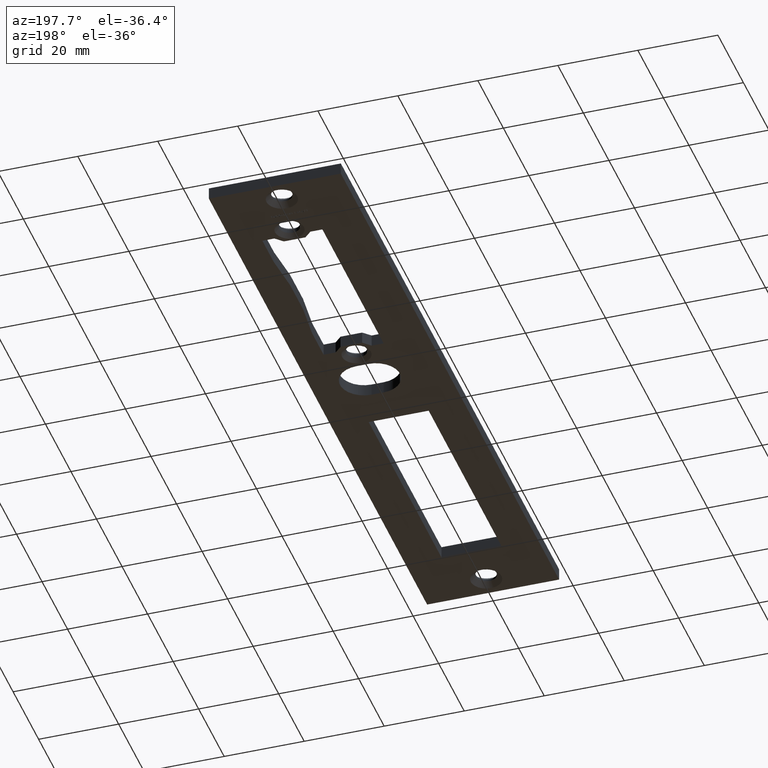
[diagram: clean part render]
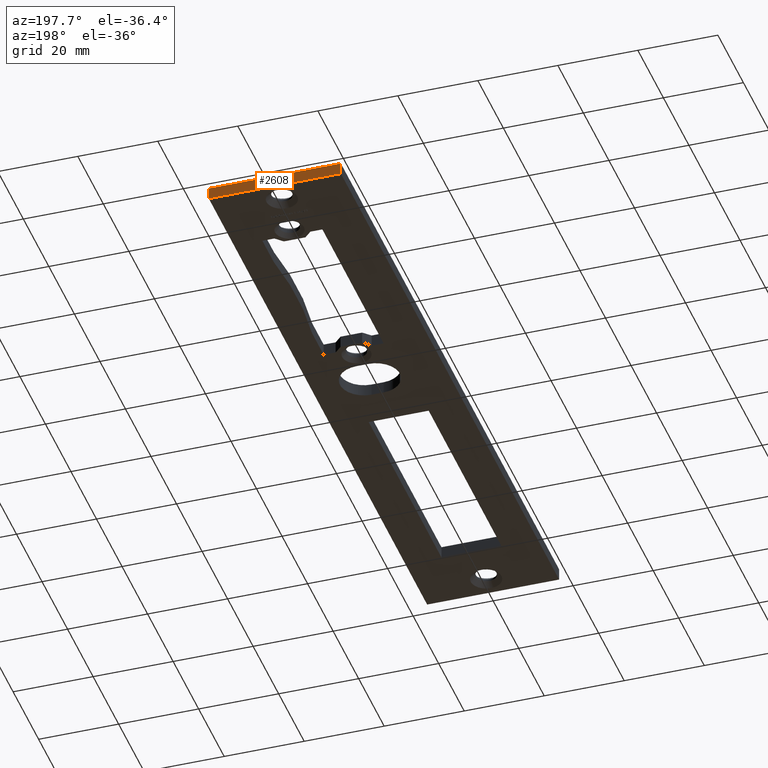
[diagram: same view with one face highlighted and labeled with its STEP entity id]
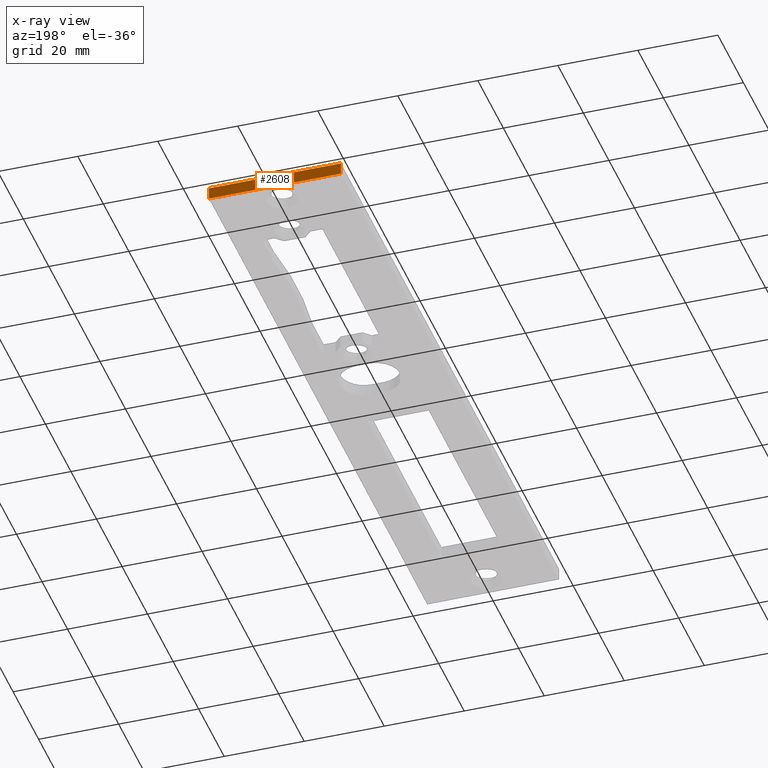
[diagram: x-ray of the same camera — body ghosted, the highlighted face saturated]
A machine part, auxiliary view. The second image highlights one B-rep face of the part: STEP entity #2608.
The next image is the same camera in x-ray: the body ghosted, the highlighted face saturated — about 0% of this face is hidden behind the body in this view.
In plain terms, the highlighted planar face has unit normal (0, -1, 0).
Its self-contained STEP definition (entity closure, byte-faithful):
#273 = PLANE ( 'NONE',  #7451 ) ;
#592 = VECTOR ( 'NONE', #2722, 1000.000000000000000 ) ;
#604 = ORIENTED_EDGE ( 'NONE', *, *, #1260, .T. ) ;
#644 = CARTESIAN_POINT ( 'NONE',  ( -16.50000000000002132, 171.0000000000000000, 3.000000000000000888 ) ) ;
#1132 = VECTOR ( 'NONE', #6288, 1000.000000000000000 ) ;
#1260 = EDGE_CURVE ( 'NONE', #5162, #1654, #1776, .T. ) ;
#1654 = VERTEX_POINT ( 'NONE', #7247 ) ;
#1776 = LINE ( 'NONE', #8458, #5402 ) ;
#1797 = LINE ( 'NONE', #2796, #1132 ) ;
#2302 = CARTESIAN_POINT ( 'NONE',  ( 0.000000000000000000, 171.0000000000000000, 3.000000000000000888 ) ) ;
#2599 = ORIENTED_EDGE ( 'NONE', *, *, #7173, .T. ) ;
#2608 = ADVANCED_FACE ( 'NONE', ( #2978 ), #273, .F. ) ;
#2722 = DIRECTION ( 'NONE',  ( -0.000000000000000000, -0.000000000000000000, -1.000000000000000000 ) ) ;
#2796 = CARTESIAN_POINT ( 'NONE',  ( 0.000000000000000000, 171.0000000000000000, 3.000000000000000888 ) ) ;
#2978 = FACE_OUTER_BOUND ( 'NONE', #6379, .T. ) ;
#3076 = DIRECTION ( 'NONE',  ( 0.000000000000000000, -0.000000000000000000, -1.000000000000000000 ) ) ;
#3612 = LINE ( 'NONE', #4809, #4064 ) ;
#3702 = VERTEX_POINT ( 'NONE', #6001 ) ;
#4064 = VECTOR ( 'NONE', #6975, 1000.000000000000000 ) ;
#4163 = DIRECTION ( 'NONE',  ( -1.000000000000000000, 0.000000000000000000, 0.000000000000000000 ) ) ;
#4168 = ORIENTED_EDGE ( 'NONE', *, *, #4538, .F. ) ;
#4216 = CARTESIAN_POINT ( 'NONE',  ( 16.50000000000002132, 171.0000000000000000, 0.000000000000000000 ) ) ;
#4538 = EDGE_CURVE ( 'NONE', #8950, #3702, #1797, .T. ) ;
#4809 = CARTESIAN_POINT ( 'NONE',  ( 16.50000000000002132, 171.0000000000000000, 3.000000000000000888 ) ) ;
#4879 = LINE ( 'NONE', #644, #592 ) ;
#5125 = EDGE_CURVE ( 'NONE', #3702, #1654, #4879, .T. ) ;
#5162 = VERTEX_POINT ( 'NONE', #4216 ) ;
#5402 = VECTOR ( 'NONE', #4163, 1000.000000000000000 ) ;
#5423 = CARTESIAN_POINT ( 'NONE',  ( 16.50000000000002132, 171.0000000000000000, 3.000000000000000888 ) ) ;
#6001 = CARTESIAN_POINT ( 'NONE',  ( -16.50000000000002132, 171.0000000000000000, 3.000000000000000888 ) ) ;
#6288 = DIRECTION ( 'NONE',  ( -1.000000000000000000, 0.000000000000000000, 0.000000000000000000 ) ) ;
#6379 = EDGE_LOOP ( 'NONE', ( #604, #6772, #4168, #2599 ) ) ;
#6772 = ORIENTED_EDGE ( 'NONE', *, *, #5125, .F. ) ;
#6975 = DIRECTION ( 'NONE',  ( -0.000000000000000000, -0.000000000000000000, -1.000000000000000000 ) ) ;
#7173 = EDGE_CURVE ( 'NONE', #8950, #5162, #3612, .T. ) ;
#7247 = CARTESIAN_POINT ( 'NONE',  ( -16.50000000000002132, 171.0000000000000000, 0.000000000000000000 ) ) ;
#7451 = AXIS2_PLACEMENT_3D ( 'NONE', #2302, #8055, #3076 ) ;
#8055 = DIRECTION ( 'NONE',  ( 0.000000000000000000, -1.000000000000000000, 0.000000000000000000 ) ) ;
#8458 = CARTESIAN_POINT ( 'NONE',  ( 0.000000000000000000, 171.0000000000000000, 0.000000000000000000 ) ) ;
#8950 = VERTEX_POINT ( 'NONE', #5423 ) ;